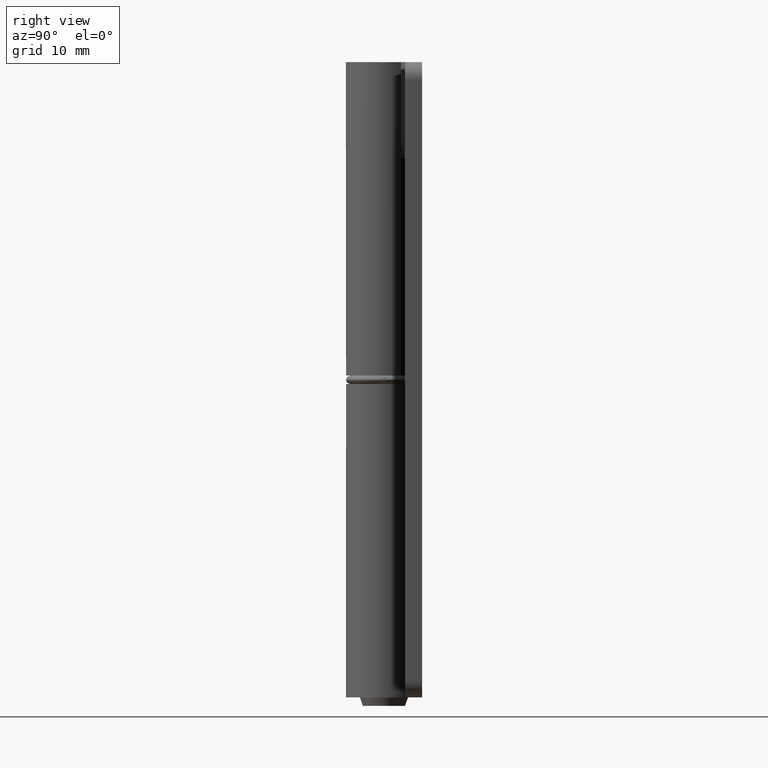
[diagram: clean part render]
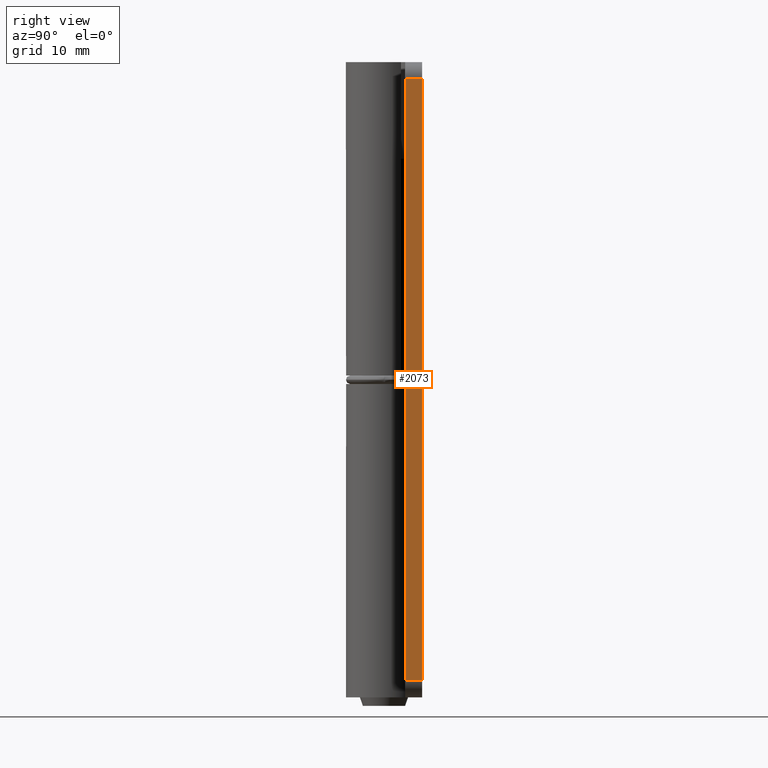
[diagram: same view with one face highlighted and labeled with its STEP entity id]
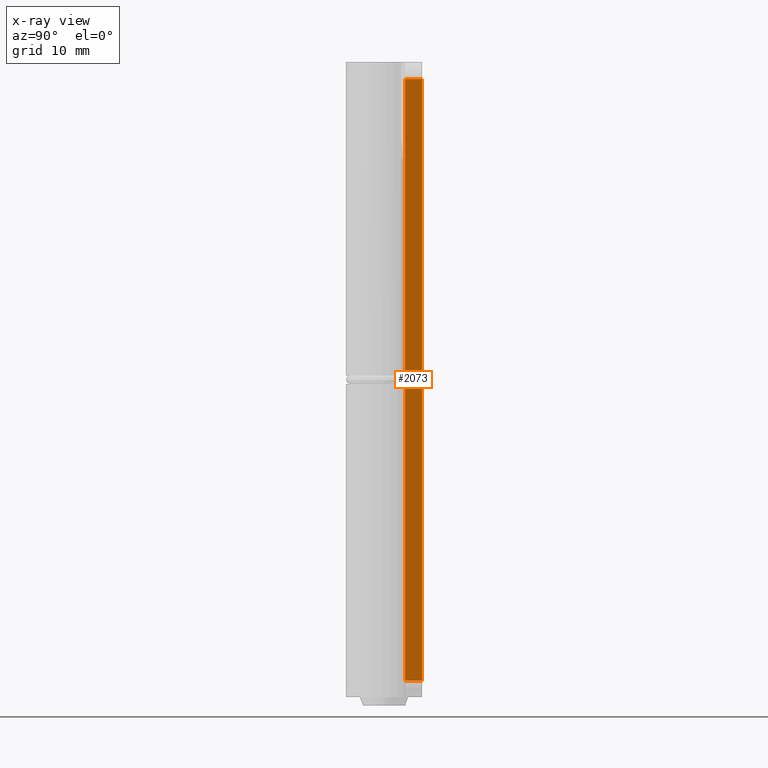
[diagram: x-ray of the same camera — body ghosted, the highlighted face saturated]
A machine part, right view. The second image highlights one B-rep face of the part: STEP entity #2073.
The next image is the same camera in x-ray: the body ghosted, the highlighted face saturated — about 0% of this face is hidden behind the body in this view.
In plain terms, the highlighted face is a freeform B-spline surface patch.
Its self-contained STEP definition (entity closure, byte-faithful):
#1678=CARTESIAN_POINT('',(19.999999999983000,2.500000000000000,2.0));
#1679=VERTEX_POINT('',#1678);
#1693=CARTESIAN_POINT('',(19.999999999983000,2.500000000000000,73.0));
#1694=VERTEX_POINT('',#1693);
#1695=CARTESIAN_POINT('',(19.999999999983000,2.500000000000000,73.0));
#1696=CARTESIAN_POINT('',(19.999999999983000,2.500000000000000,2.0));
#1697=QUASI_UNIFORM_CURVE('',1,(#1695,#1696),.UNSPECIFIED.,.F.,.U.);
#1698=EDGE_CURVE('',#1694,#1679,#1697,.T.);
#1862=CARTESIAN_POINT('',(19.999999999983000,4.500000000000000,73.0));
#1863=VERTEX_POINT('',#1862);
#1883=CARTESIAN_POINT('',(19.999999999983000,4.500000000000000,73.0));
#1884=CARTESIAN_POINT('',(19.999999999983000,2.500000000000000,73.0));
#1885=QUASI_UNIFORM_CURVE('',1,(#1883,#1884),.UNSPECIFIED.,.F.,.U.);
#1886=EDGE_CURVE('',#1863,#1694,#1885,.T.);
#1905=CARTESIAN_POINT('',(19.999999999983000,4.500000000000000,2.0));
#1906=VERTEX_POINT('',#1905);
#1922=CARTESIAN_POINT('',(19.999999999983000,2.500000000000000,2.0));
#1923=CARTESIAN_POINT('',(19.999999999983000,4.500000000000000,2.0));
#1924=QUASI_UNIFORM_CURVE('',1,(#1922,#1923),.UNSPECIFIED.,.F.,.U.);
#1925=EDGE_CURVE('',#1679,#1906,#1924,.T.);
#2058=CARTESIAN_POINT('',(19.999999999983000,2.400100003876388,76.546449862388215));
#2059=CARTESIAN_POINT('',(19.999999999983000,2.400100003876388,-1.546451766756626));
#2060=CARTESIAN_POINT('',(19.999999999983000,4.599900049767792,76.546449862388215));
#2061=CARTESIAN_POINT('',(19.999999999983000,4.599900049767792,-1.546451766756626));
#2062=B_SPLINE_SURFACE_WITH_KNOTS('',1,1,((#2058,#2060),(#2059,#2061)),.UNSPECIFIED.,.F.,.F.,.U.,(2,2),(2,2),(0.0,78.092901629144848),(0.0,2.199800045891405),.UNSPECIFIED.);
#2063=ORIENTED_EDGE('',*,*,#1698,.T.);
#2064=ORIENTED_EDGE('',*,*,#1925,.T.);
#2065=CARTESIAN_POINT('',(19.999999999983000,4.500000000000000,73.0));
#2066=CARTESIAN_POINT('',(19.999999999983000,4.500000000000000,2.0));
#2067=QUASI_UNIFORM_CURVE('',1,(#2065,#2066),.UNSPECIFIED.,.F.,.U.);
#2068=EDGE_CURVE('',#1863,#1906,#2067,.T.);
#2069=ORIENTED_EDGE('',*,*,#2068,.F.);
#2070=ORIENTED_EDGE('',*,*,#1886,.T.);
#2071=EDGE_LOOP('',(#2063,#2064,#2069,#2070));
#2072=FACE_OUTER_BOUND('',#2071,.T.);
#2073=ADVANCED_FACE('',(#2072),#2062,.T.);